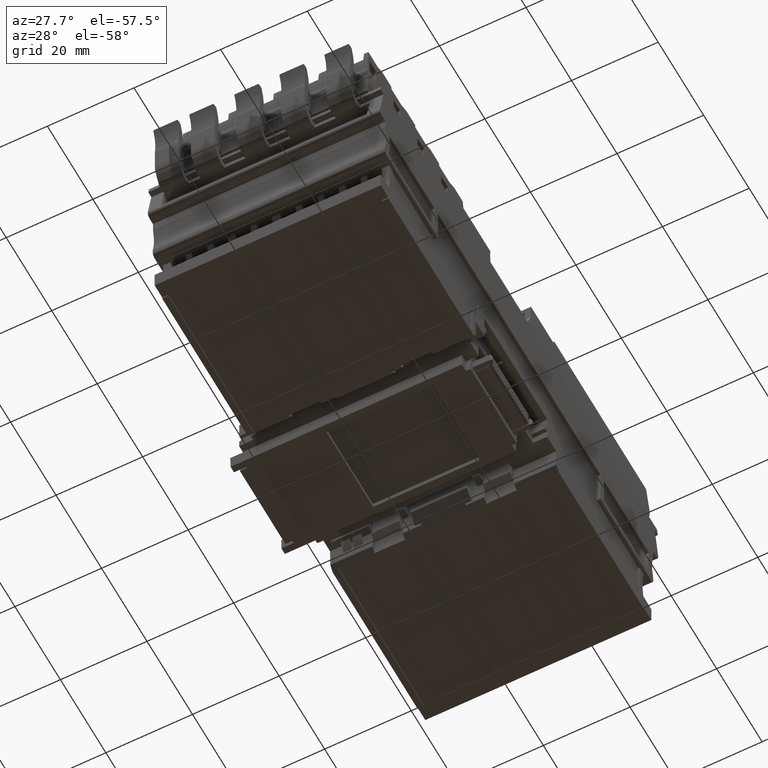
[diagram: clean part render]
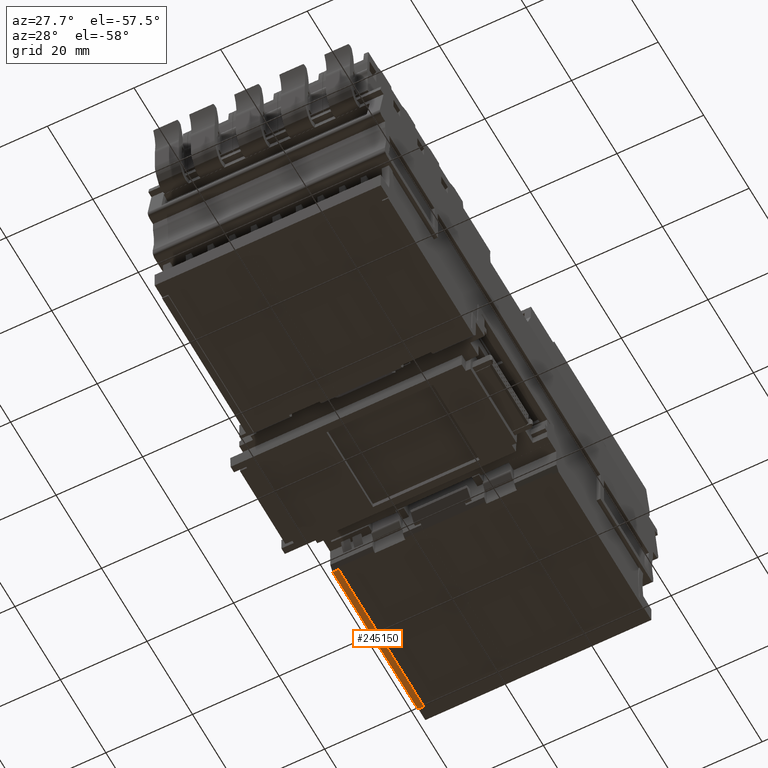
[diagram: same view with one face highlighted and labeled with its STEP entity id]
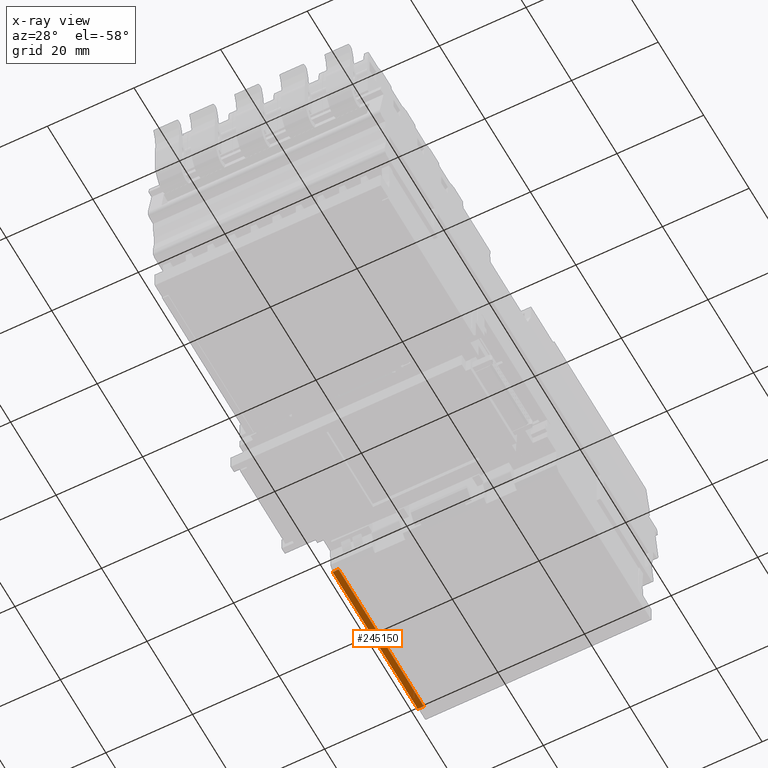
[diagram: x-ray of the same camera — body ghosted, the highlighted face saturated]
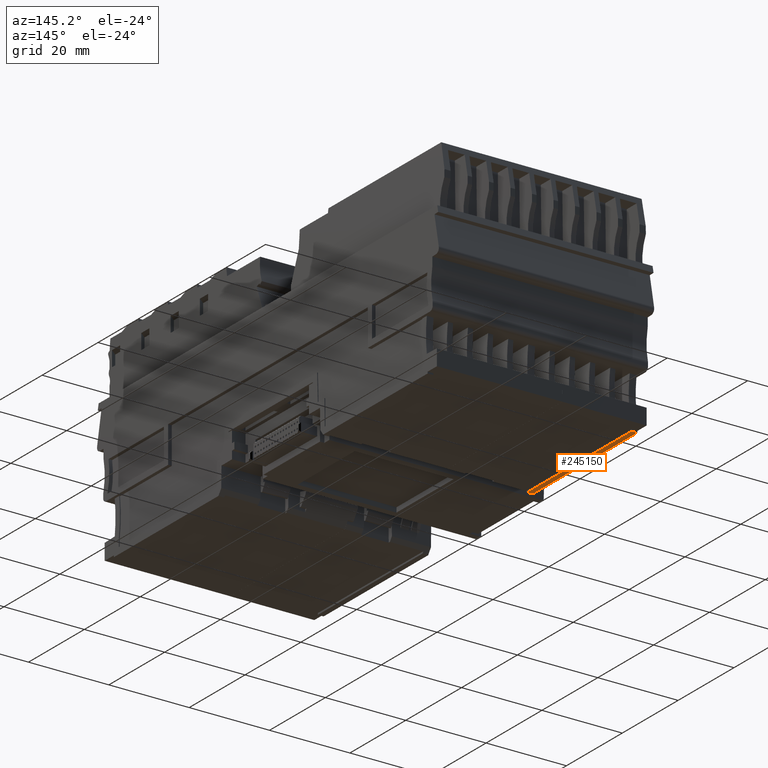
[diagram: same view with one face highlighted and labeled with its STEP entity id]
A machine part, auxiliary view. The second image highlights one B-rep face of the part: STEP entity #245150.
The next image is the same camera in x-ray: the body ghosted, the highlighted face saturated — about 0% of this face is hidden behind the body in this view.
A second angle (auxiliary view) of the same face is appended — the face is thin or edge-on in the first view.
In plain terms, the highlighted planar face has unit normal (0, 0.0002, -1).
Its self-contained STEP definition (entity closure, byte-faithful):
#214700=CARTESIAN_POINT('',(54.1626586199336,1.93187741401425,
-41.739731710237));
#214710=VERTEX_POINT('',#214700);
#214740=CARTESIAN_POINT('',(0.,-4.61742726116471,-40.5849125908506));
#214750=DIRECTION('',(-0.992546151640016,-0.12001787424952,
0.0211623894024557));
#214760=VECTOR('',#214750,1.);
#214770=LINE('',#214740,#214760);
#214780=CARTESIAN_POINT('',(91.3616022911449,6.42994345998048,
-42.5328621153365));
#214790=VERTEX_POINT('',#214780);
#214800=EDGE_CURVE('',#214790,#214710,#214770,.T.);
#231560=CARTESIAN_POINT('',(90.8647567542069,6.36205003526864,
-42.5716542476905));
#231570=DIRECTION('',(0.121850782124404,-0.98034885095106,
0.155140314988104));
#231580=DIRECTION('',(0.992546151639979,0.120017874246817,
-0.0211623894195023));
#231590=AXIS2_PLACEMENT_3D('',#231560,#231570,#231580);
#231600=PLANE('',#231590);
#244260=CARTESIAN_POINT('',(91.4531957384393,13.1721580835779,0.));
#244270=DIRECTION('',(-0.00212691331880323,-0.156562576305972,
-0.987665751122398));
#244280=VECTOR('',#244270,1.);
#244290=LINE('',#244260,#244280);
#244300=CARTESIAN_POINT('',(91.3645911073772,6.6499509070561,
-41.1449581500632));
#244310=VERTEX_POINT('',#244300);
#244320=EDGE_CURVE('',#244310,#214790,#244290,.T.);
#244630=CARTESIAN_POINT('',(54.1656474361099,2.15188486108201,
-40.3518277449695));
#244640=VERTEX_POINT('',#244630);
#244690=CARTESIAN_POINT('',(54.2525440791967,8.54836677110918,0.));
#244700=DIRECTION('',(0.00212691327904274,0.156562576301165,
0.987665751123246));
#244710=VECTOR('',#244700,1.);
#244720=LINE('',#244690,#244710);
#244730=EDGE_CURVE('',#214710,#244640,#244720,.T.);
#245040=CARTESIAN_POINT('',(0.,-4.3977812193223,-39.1969449001013));
#245050=DIRECTION('',(-0.992546151640016,-0.120017874249549,
0.0211623894022701));
#245060=VECTOR('',#245050,1.);
#245070=LINE('',#245040,#245060);
#245080=EDGE_CURVE('',#244310,#244640,#245070,.T.);
#245090=ORIENTED_EDGE('',*,*,#245080,.T.);
#245100=ORIENTED_EDGE('',*,*,#244320,.F.);
#245110=ORIENTED_EDGE('',*,*,#214800,.F.);
#245120=ORIENTED_EDGE('',*,*,#244730,.F.);
#245130=EDGE_LOOP('',(#245120,#245110,#245100,#245090));
#245140=FACE_OUTER_BOUND('',#245130,.T.);
#245150=ADVANCED_FACE('',(#245140),#231600,.T.);